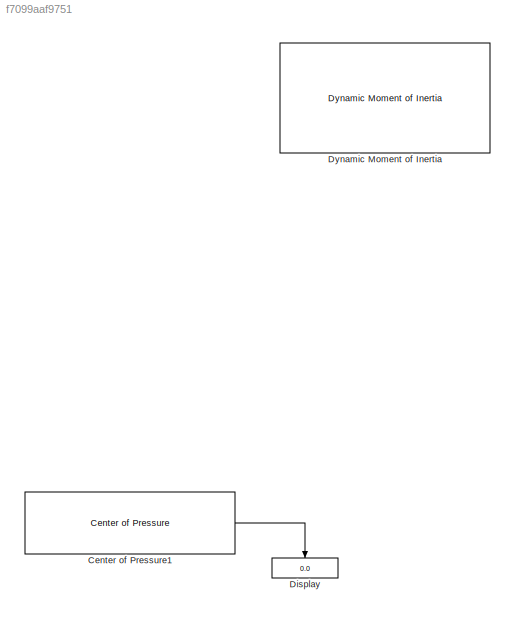
MODEL slx_f7099aaf9751
KIND model
BLOCK [Reference] Center of Pressure1  REF=rocket_angular_flight_library/Center of Pressure
  Ports = [1, 1]
  SourceBlock = rocket_angular_flight_library/Center of Pressure
  SourceType = SubSystem
BLOCK [Display] Display
  Decimation = 1
  Ports = [1]
BLOCK [Reference] Dynamic Moment of Inertia  REF=rocket_dynamic_data_library/Dynamic Moment of Inertia  (lib defined in slx_58be5b8ac4f4)
  Ports = [7, 1]
  SourceBlock = rocket_dynamic_data_library/Dynamic Moment of Inertia
  SourceType = SubSystem
LINE Center of Pressure1:1 -> Display:1
